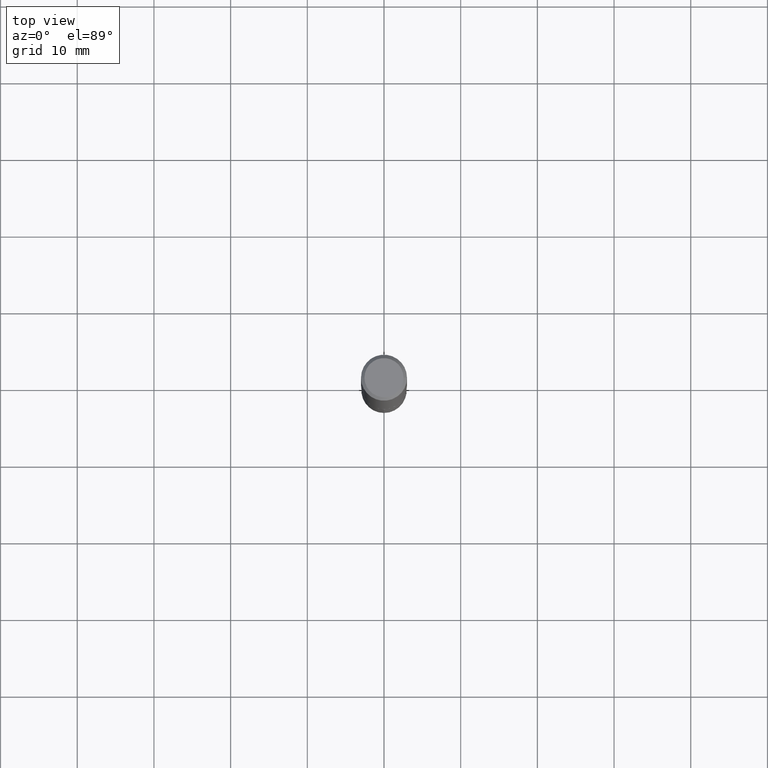
[diagram: clean part render]
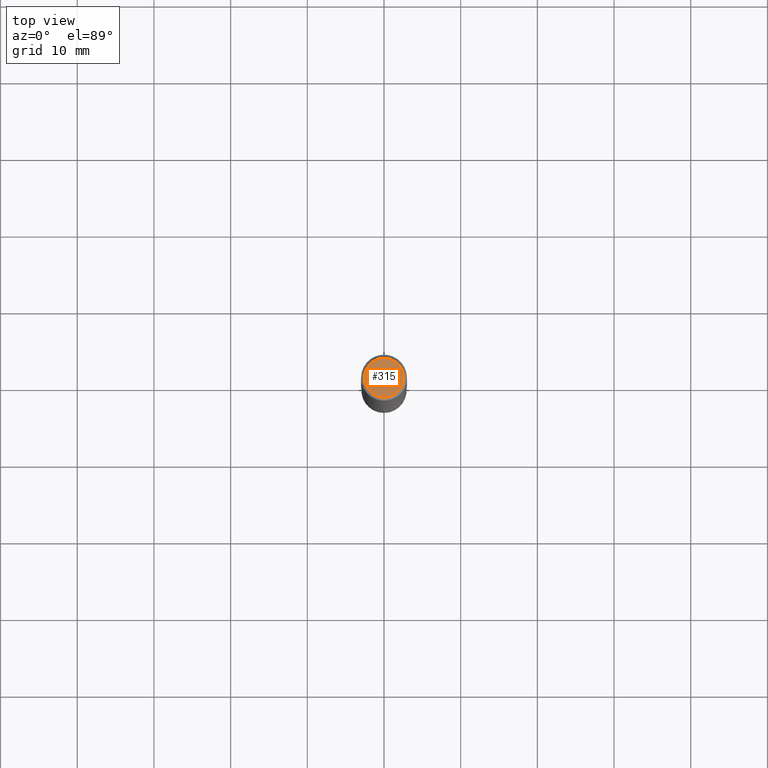
[diagram: same view with one face highlighted and labeled with its STEP entity id]
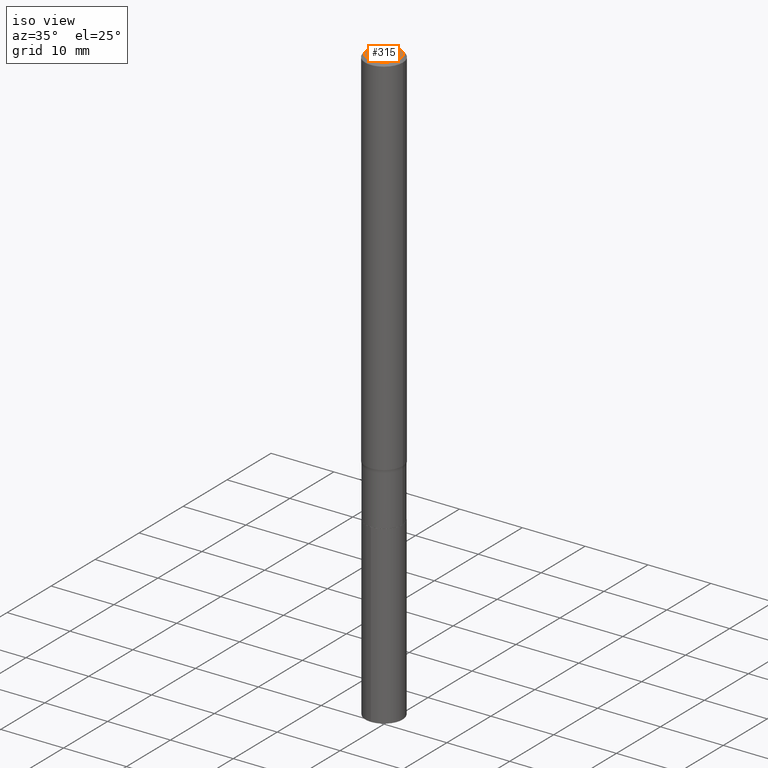
[diagram: same view with one face highlighted and labeled with its STEP entity id]
A machine part, top view. The second image highlights one B-rep face of the part: STEP entity #315.
A second angle (iso view) of the same face is appended — the face is thin or edge-on in the first view.
In plain terms, the highlighted planar face has unit normal (0, -0, -1).
Its self-contained STEP definition (entity closure, byte-faithful):
#11 = CARTESIAN_POINT ( 'NONE',  ( -0.1003850000000000159, 7.319105043583386689E-16, -2.868857591683090262E-17 ) ) ;
#27 = CARTESIAN_POINT ( 'NONE',  ( 7.015701749847187307E-46, -1.001656274515824970E-31, -2.868857591682589212E-17 ) ) ;
#35 = CARTESIAN_POINT ( 'NONE',  ( 7.015701749847187307E-46, -1.001656274515824970E-31, -2.868857591682589212E-17 ) ) ;
#74 = EDGE_CURVE ( 'NONE', #258, #367, #417, .T. ) ;
#97 = DIRECTION ( 'NONE',  ( 2.438088387897960049E-29, -3.491481338843145188E-15, -1.000000000000000000 ) ) ;
#131 = FACE_OUTER_BOUND ( 'NONE', #361, .T. ) ;
#170 = DIRECTION ( 'NONE',  ( 1.000000000000000000, -6.982962677686266711E-15, 4.875668750515085695E-29 ) ) ;
#179 = ORIENTED_EDGE ( 'NONE', *, *, #74, .T. ) ;
#190 = AXIS2_PLACEMENT_3D ( 'NONE', #384, #97, #416 ) ;
#210 = AXIS2_PLACEMENT_3D ( 'NONE', #35, #360, #289 ) ;
#257 = AXIS2_PLACEMENT_3D ( 'NONE', #27, #274, #170 ) ;
#258 = VERTEX_POINT ( 'NONE', #11 ) ;
#269 = PLANE ( 'NONE',  #190 ) ;
#274 = DIRECTION ( 'NONE',  ( -2.445468806185136597E-29, 3.491481338843145583E-15, 1.000000000000000000 ) ) ;
#289 = DIRECTION ( 'NONE',  ( 1.000000000000000000, -6.982962677686266711E-15, 4.875668750515085695E-29 ) ) ;
#315 = ADVANCED_FACE ( 'NONE', ( #131 ), #269, .F. ) ;
#341 = CIRCLE ( 'NONE', #257, 0.1003850000000000159 ) ;
#359 = ORIENTED_EDGE ( 'NONE', *, *, #408, .T. ) ;
#360 = DIRECTION ( 'NONE',  ( -2.445468806185136597E-29, 3.491481338843145583E-15, 1.000000000000000000 ) ) ;
#361 = EDGE_LOOP ( 'NONE', ( #179, #359 ) ) ;
#367 = VERTEX_POINT ( 'NONE', #386 ) ;
#384 = CARTESIAN_POINT ( 'NONE',  ( 3.507850874923593654E-46, -5.008281372579124849E-32, -1.434428795841294606E-17 ) ) ;
#386 = CARTESIAN_POINT ( 'NONE',  ( 0.1003850000000000159, -7.803837484803601317E-16, -2.868857591682071522E-17 ) ) ;
#408 = EDGE_CURVE ( 'NONE', #367, #258, #341, .T. ) ;
#416 = DIRECTION ( 'NONE',  ( -1.000000000000000000, 6.982962677686265922E-15, -4.876176775795935793E-29 ) ) ;
#417 = CIRCLE ( 'NONE', #210, 0.1003850000000000159 ) ;